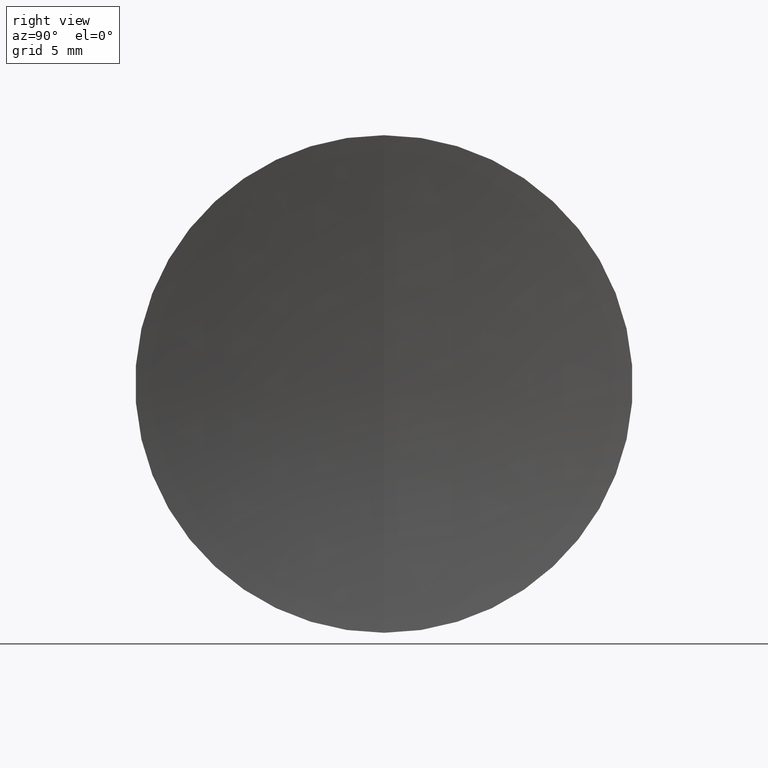
[diagram: clean part render]
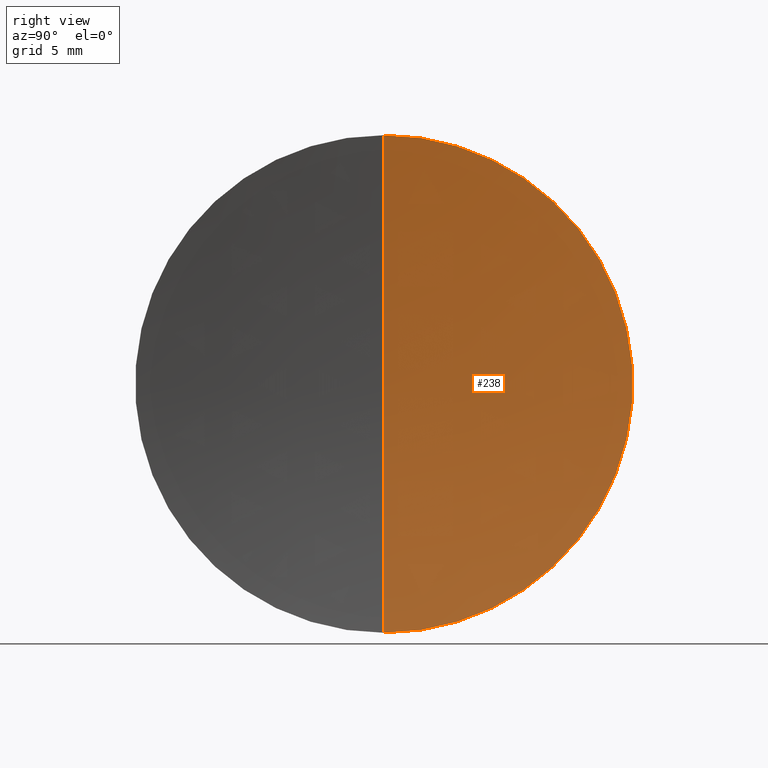
[diagram: same view with one face highlighted and labeled with its STEP entity id]
A machine part, right view. The second image highlights one B-rep face of the part: STEP entity #238.
In plain terms, the highlighted spherical surface has radius 84.92 mm.
Its self-contained STEP definition (entity closure, byte-faithful):
#5 = AXIS2_PLACEMENT_3D ( 'NONE', #113, #80, #100 ) ;
#28 = CARTESIAN_POINT ( 'NONE',  ( 128.5502464302756800, 0.0000000000000000000, 0.0000000000000000000 ) ) ;
#38 = EDGE_CURVE ( 'NONE', #84, #188, #176, .T. ) ;
#42 = CARTESIAN_POINT ( 'NONE',  ( 128.5502464302756800, 0.0000000000000000000, 0.0000000000000000000 ) ) ;
#44 = ORIENTED_EDGE ( 'NONE', *, *, #96, .T. ) ;
#45 = EDGE_CURVE ( 'NONE', #303, #84, #214, .T. ) ;
#46 = SPHERICAL_SURFACE ( 'NONE', #146, 84.92000000000000200 ) ;
#59 = AXIS2_PLACEMENT_3D ( 'NONE', #28, #283, #231 ) ;
#64 = DIRECTION ( 'NONE',  ( 0.0000000000000000000, 0.0000000000000000000, -1.000000000000000000 ) ) ;
#66 = CARTESIAN_POINT ( 'NONE',  ( 44.58527516249046100, -1.555301434917136900E-015, 12.69999999999998500 ) ) ;
#80 = DIRECTION ( 'NONE',  ( 0.0000000000000000000, -1.000000000000000000, -1.224646799147353200E-016 ) ) ;
#84 = VERTEX_POINT ( 'NONE', #334 ) ;
#96 = EDGE_CURVE ( 'NONE', #303, #188, #148, .T. ) ;
#100 = DIRECTION ( 'NONE',  ( 0.0000000000000000000, 1.224646799147353200E-016, -1.000000000000000000 ) ) ;
#113 = CARTESIAN_POINT ( 'NONE',  ( 128.5502464302756800, 0.0000000000000000000, 0.0000000000000000000 ) ) ;
#133 = FACE_OUTER_BOUND ( 'NONE', #235, .T. ) ;
#146 = AXIS2_PLACEMENT_3D ( 'NONE', #42, #227, #64 ) ;
#148 = CIRCLE ( 'NONE', #5, 84.92000000000000200 ) ;
#176 = CIRCLE ( 'NONE', #59, 84.92000000000000200 ) ;
#188 = VERTEX_POINT ( 'NONE', #213 ) ;
#207 = DIRECTION ( 'NONE',  ( -1.000000000000000000, -0.0000000000000000000, -0.0000000000000000000 ) ) ;
#209 = ORIENTED_EDGE ( 'NONE', *, *, #38, .F. ) ;
#213 = CARTESIAN_POINT ( 'NONE',  ( 43.63024643027569000, 0.0000000000000000000, -5.199850309179661400E-015 ) ) ;
#214 = CIRCLE ( 'NONE', #242, 12.70000000000001700 ) ;
#227 = DIRECTION ( 'NONE',  ( -0.0000000000000000000, -1.000000000000000000, -0.0000000000000000000 ) ) ;
#231 = DIRECTION ( 'NONE',  ( 0.0000000000000000000, 0.0000000000000000000, 1.000000000000000000 ) ) ;
#235 = EDGE_LOOP ( 'NONE', ( #256, #44, #209 ) ) ;
#238 = ADVANCED_FACE ( 'NONE', ( #133 ), #46, .F. ) ;
#242 = AXIS2_PLACEMENT_3D ( 'NONE', #316, #207, #310 ) ;
#256 = ORIENTED_EDGE ( 'NONE', *, *, #45, .F. ) ;
#283 = DIRECTION ( 'NONE',  ( 0.0000000000000000000, 1.000000000000000000, -0.0000000000000000000 ) ) ;
#303 = VERTEX_POINT ( 'NONE', #66 ) ;
#310 = DIRECTION ( 'NONE',  ( 0.0000000000000000000, 0.0000000000000000000, 1.000000000000000000 ) ) ;
#316 = CARTESIAN_POINT ( 'NONE',  ( 44.58527516249045400, 0.0000000000000000000, 0.0000000000000000000 ) ) ;
#334 = CARTESIAN_POINT ( 'NONE',  ( 44.58527516249046100, 0.0000000000000000000, -12.69999999999998500 ) ) ;